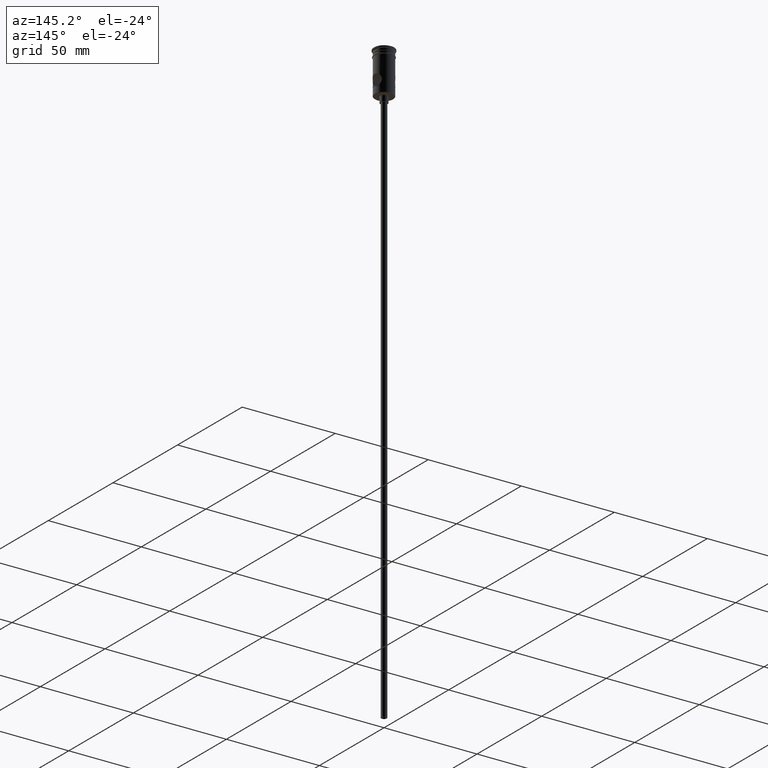
[diagram: clean part render]
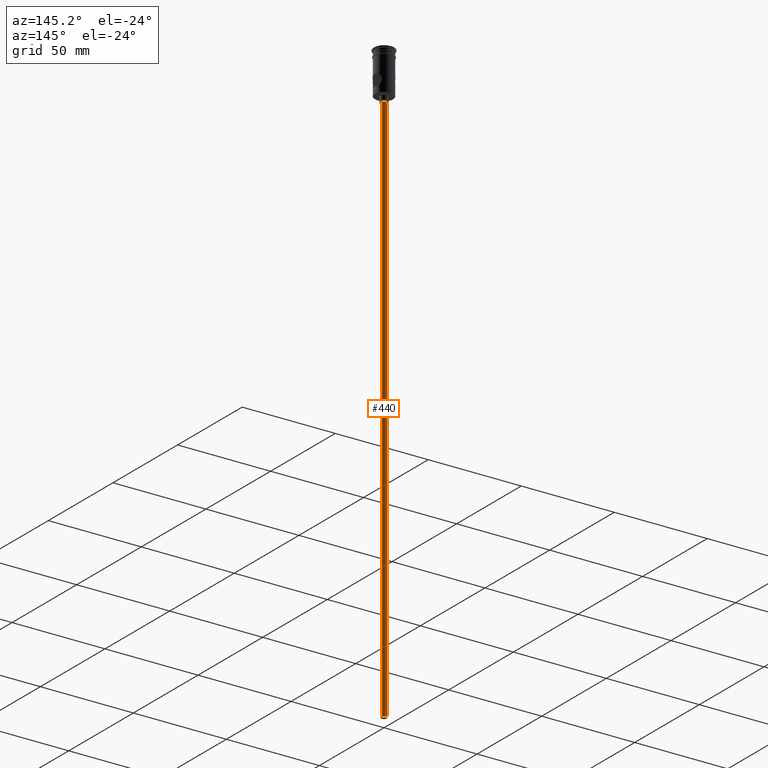
[diagram: same view with one face highlighted and labeled with its STEP entity id]
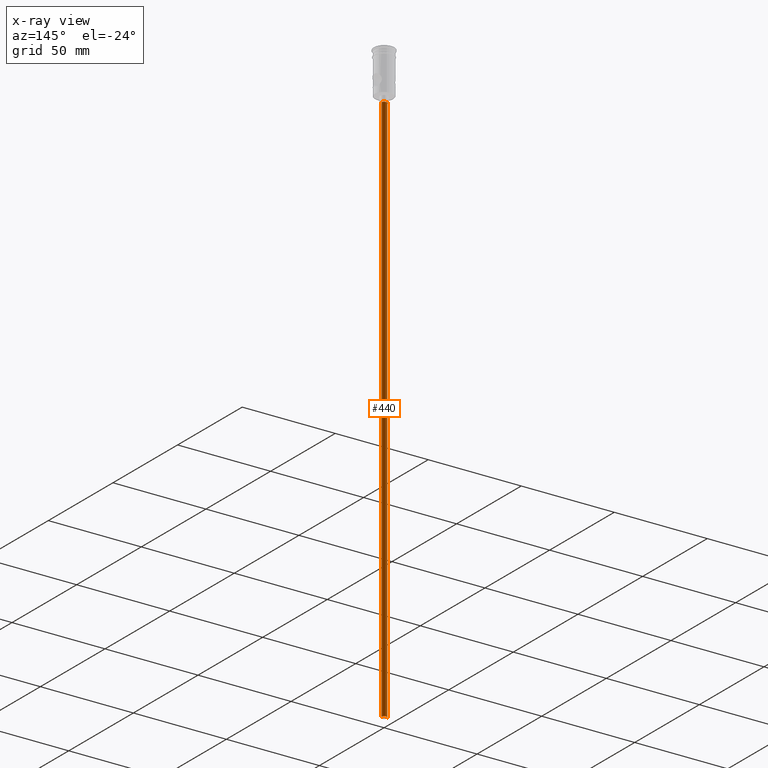
[diagram: x-ray of the same camera — body ghosted, the highlighted face saturated]
A machine part, auxiliary view. The second image highlights one B-rep face of the part: STEP entity #440.
The next image is the same camera in x-ray: the body ghosted, the highlighted face saturated — about 0% of this face is hidden behind the body in this view.
In plain terms, the highlighted cylindrical surface (edge-blend (fillet) strip) has radius 1.5 mm, axis along (-0, -0, 1).
Its self-contained STEP definition (entity closure, byte-faithful):
#9 = ORIENTED_EDGE ( 'NONE', *, *, #511, .T. ) ;
#12 = CARTESIAN_POINT ( 'NONE',  ( 0.000000000000000000, 0.000000000000000000, -322.5000000000000000 ) ) ;
#16 = VERTEX_POINT ( 'NONE', #1256 ) ;
#120 = LINE ( 'NONE', #778, #565 ) ;
#125 = DIRECTION ( 'NONE',  ( -0.000000000000000000, -0.000000000000000000, 1.000000000000000000 ) ) ;
#132 = LINE ( 'NONE', #576, #271 ) ;
#156 = ORIENTED_EDGE ( 'NONE', *, *, #1180, .T. ) ;
#271 = VECTOR ( 'NONE', #467, 1000.000000000000000 ) ;
#368 = CARTESIAN_POINT ( 'NONE',  ( 0.000000000000000000, 0.000000000000000000, -25.50000000000000000 ) ) ;
#408 = AXIS2_PLACEMENT_3D ( 'NONE', #368, #798, #1280 ) ;
#429 = CARTESIAN_POINT ( 'NONE',  ( -1.500000000000000222, 1.836970198721030181E-16, -322.5000000000000000 ) ) ;
#440 = ADVANCED_FACE ( 'NONE', ( #917 ), #451, .T. ) ;
#451 = CYLINDRICAL_SURFACE ( 'NONE', #1382, 1.500000000000000222 ) ;
#459 = DIRECTION ( 'NONE',  ( 0.000000000000000000, 0.000000000000000000, -1.000000000000000000 ) ) ;
#467 = DIRECTION ( 'NONE',  ( -0.000000000000000000, -0.000000000000000000, 1.000000000000000000 ) ) ;
#488 = EDGE_CURVE ( 'NONE', #736, #1153, #792, .T. ) ;
#511 = EDGE_CURVE ( 'NONE', #736, #941, #132, .T. ) ;
#565 = VECTOR ( 'NONE', #800, 1000.000000000000000 ) ;
#576 = CARTESIAN_POINT ( 'NONE',  ( -1.500000000000000222, 1.836970198721030181E-16, -322.5000000000000000 ) ) ;
#585 = CIRCLE ( 'NONE', #408, 1.500000000000000222 ) ;
#595 = ORIENTED_EDGE ( 'NONE', *, *, #1331, .F. ) ;
#736 = VERTEX_POINT ( 'NONE', #429 ) ;
#778 = CARTESIAN_POINT ( 'NONE',  ( 1.500000000000000222, 0.000000000000000000, -322.5000000000000000 ) ) ;
#792 = CIRCLE ( 'NONE', #1080, 1.500000000000000222 ) ;
#798 = DIRECTION ( 'NONE',  ( 0.000000000000000000, 0.000000000000000000, -1.000000000000000000 ) ) ;
#800 = DIRECTION ( 'NONE',  ( -0.000000000000000000, -0.000000000000000000, 1.000000000000000000 ) ) ;
#917 = FACE_OUTER_BOUND ( 'NONE', #1065, .T. ) ;
#941 = VERTEX_POINT ( 'NONE', #1072 ) ;
#1023 = DIRECTION ( 'NONE',  ( -1.000000000000000000, 0.000000000000000000, 0.000000000000000000 ) ) ;
#1065 = EDGE_LOOP ( 'NONE', ( #1405, #9, #156, #595 ) ) ;
#1072 = CARTESIAN_POINT ( 'NONE',  ( -1.500000000000000222, 1.836970198721030181E-16, -25.50000000000000000 ) ) ;
#1080 = AXIS2_PLACEMENT_3D ( 'NONE', #12, #459, #1023 ) ;
#1117 = DIRECTION ( 'NONE',  ( 1.000000000000000000, 0.000000000000000000, 0.000000000000000000 ) ) ;
#1153 = VERTEX_POINT ( 'NONE', #1373 ) ;
#1180 = EDGE_CURVE ( 'NONE', #941, #16, #585, .T. ) ;
#1250 = CARTESIAN_POINT ( 'NONE',  ( 0.000000000000000000, 0.000000000000000000, -322.5000000000000000 ) ) ;
#1256 = CARTESIAN_POINT ( 'NONE',  ( 1.500000000000000222, 0.000000000000000000, -25.50000000000000000 ) ) ;
#1280 = DIRECTION ( 'NONE',  ( -1.000000000000000000, 0.000000000000000000, 0.000000000000000000 ) ) ;
#1331 = EDGE_CURVE ( 'NONE', #1153, #16, #120, .T. ) ;
#1373 = CARTESIAN_POINT ( 'NONE',  ( 1.500000000000000222, 0.000000000000000000, -322.5000000000000000 ) ) ;
#1382 = AXIS2_PLACEMENT_3D ( 'NONE', #1250, #125, #1117 ) ;
#1405 = ORIENTED_EDGE ( 'NONE', *, *, #488, .F. ) ;